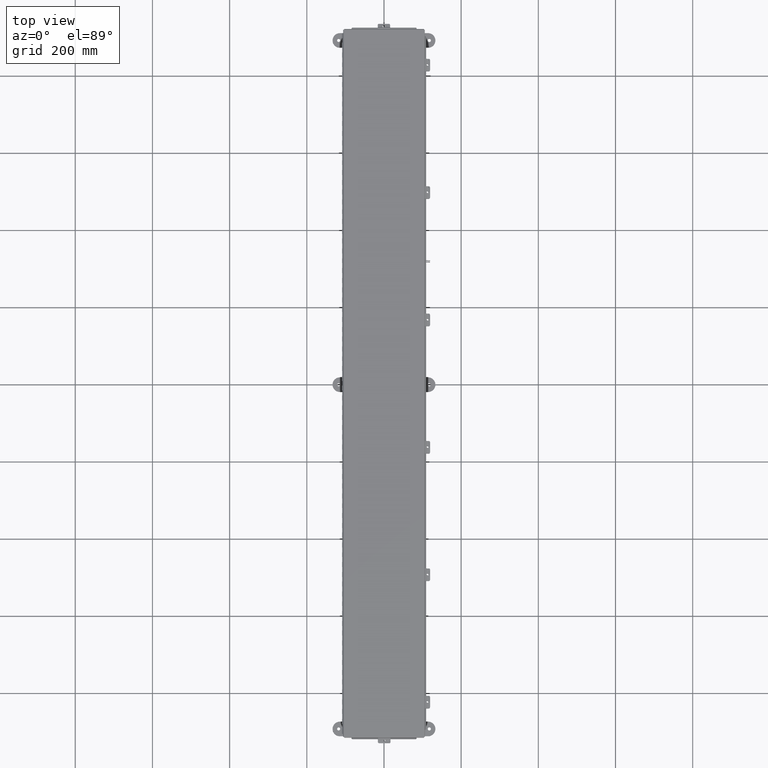
[diagram: clean part render]
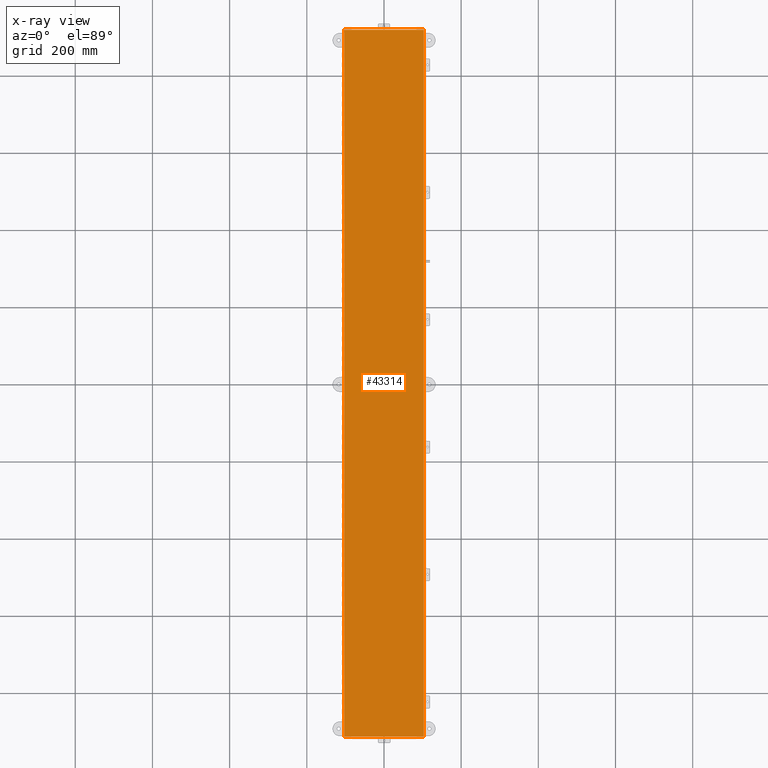
[diagram: x-ray — body ghosted, one internal face saturated and labeled with its STEP entity id]
A machine part, top view, then the same camera in x-ray: the body is ghosted and one INTERNAL B-rep face — a face not visible from any outside direction — is saturated and labeled: STEP entity #43314.
In plain terms, the highlighted planar face has unit normal (-0, -0, 1).
Its self-contained STEP definition (entity closure, byte-faithful):
#404 = VECTOR ( 'NONE', #35596, 39.37007874015748100 ) ;
#1545 = VERTEX_POINT ( 'NONE', #28986 ) ;
#3355 = VERTEX_POINT ( 'NONE', #25488 ) ;
#4287 = DIRECTION ( 'NONE',  ( 1.379039709435212500E-056, -7.186029808497612900E-029, -1.000000000000000000 ) ) ;
#8107 = CARTESIAN_POINT ( 'NONE',  ( 4.068550000000028500, 36.07447893218812900, 0.0000000000000000000 ) ) ;
#8418 = LINE ( 'NONE', #8107, #17687 ) ;
#12129 = LINE ( 'NONE', #31656, #404 ) ;
#12718 = CARTESIAN_POINT ( 'NONE',  ( -4.074478932188162300, 36.06854999999999500, 0.0000000000000000000 ) ) ;
#13708 = ORIENTED_EDGE ( 'NONE', *, *, #33981, .F. ) ;
#13738 = FACE_OUTER_BOUND ( 'NONE', #48760, .T. ) ;
#14411 = LINE ( 'NONE', #21922, #22354 ) ;
#14549 = VECTOR ( 'NONE', #24511, 39.37007874015748100 ) ;
#15776 = LINE ( 'NONE', #12718, #14549 ) ;
#17687 = VECTOR ( 'NONE', #39486, 39.37007874015748100 ) ;
#18164 = DIRECTION ( 'NONE',  ( -1.000000000000000000, -1.919056483462499400E-028, -0.0000000000000000000 ) ) ;
#21922 = CARTESIAN_POINT ( 'NONE',  ( 4.074478932188163100, -36.06855000000000900, 0.0000000000000000000 ) ) ;
#22354 = VECTOR ( 'NONE', #18164, 39.37007874015748100 ) ;
#22944 = VERTEX_POINT ( 'NONE', #43816 ) ;
#24511 = DIRECTION ( 'NONE',  ( 1.000000000000000000, 1.919056483462499400E-028, -0.0000000000000000000 ) ) ;
#25488 = CARTESIAN_POINT ( 'NONE',  ( 4.068550000000028500, -36.06855000000000900, 0.0000000000000000000 ) ) ;
#26270 = VERTEX_POINT ( 'NONE', #30161 ) ;
#28986 = CARTESIAN_POINT ( 'NONE',  ( 4.068550000000028500, 36.06854999999998800, 0.0000000000000000000 ) ) ;
#30161 = CARTESIAN_POINT ( 'NONE',  ( -4.068550000000028500, 36.06854999999999500, 0.0000000000000000000 ) ) ;
#31656 = CARTESIAN_POINT ( 'NONE',  ( -4.068550000000028500, -36.07447893218814300, -1.092739197465705300E-015 ) ) ;
#32977 = ORIENTED_EDGE ( 'NONE', *, *, #38367, .F. ) ;
#33243 = EDGE_CURVE ( 'NONE', #1545, #3355, #8418, .T. ) ;
#33651 = ORIENTED_EDGE ( 'NONE', *, *, #49490, .F. ) ;
#33981 = EDGE_CURVE ( 'NONE', #26270, #1545, #15776, .T. ) ;
#35596 = DIRECTION ( 'NONE',  ( 1.918070407330989000E-028, 1.000000000000000000, 7.193425379484101400E-029 ) ) ;
#35675 = CARTESIAN_POINT ( 'NONE',  ( 0.0000000000000000000, 0.0000000000000000000, 0.0000000000000000000 ) ) ;
#38367 = EDGE_CURVE ( 'NONE', #3355, #22944, #14411, .T. ) ;
#38654 = AXIS2_PLACEMENT_3D ( 'NONE', #35675, #4287, #43522 ) ;
#39486 = DIRECTION ( 'NONE',  ( -1.918070407330989000E-028, -1.000000000000000000, -7.193425379484101400E-029 ) ) ;
#39618 = PLANE ( 'NONE',  #38654 ) ;
#43013 = ORIENTED_EDGE ( 'NONE', *, *, #33243, .F. ) ;
#43314 = ADVANCED_FACE ( 'NONE', ( #13738 ), #39618, .F. ) ;
#43522 = DIRECTION ( 'NONE',  ( -1.000000000000000000, -1.919056483462499100E-028, 0.0000000000000000000 ) ) ;
#43816 = CARTESIAN_POINT ( 'NONE',  ( -4.068550000000028500, -36.06855000000000900, 0.0000000000000000000 ) ) ;
#48760 = EDGE_LOOP ( 'NONE', ( #43013, #13708, #33651, #32977 ) ) ;
#49490 = EDGE_CURVE ( 'NONE', #22944, #26270, #12129, .T. ) ;